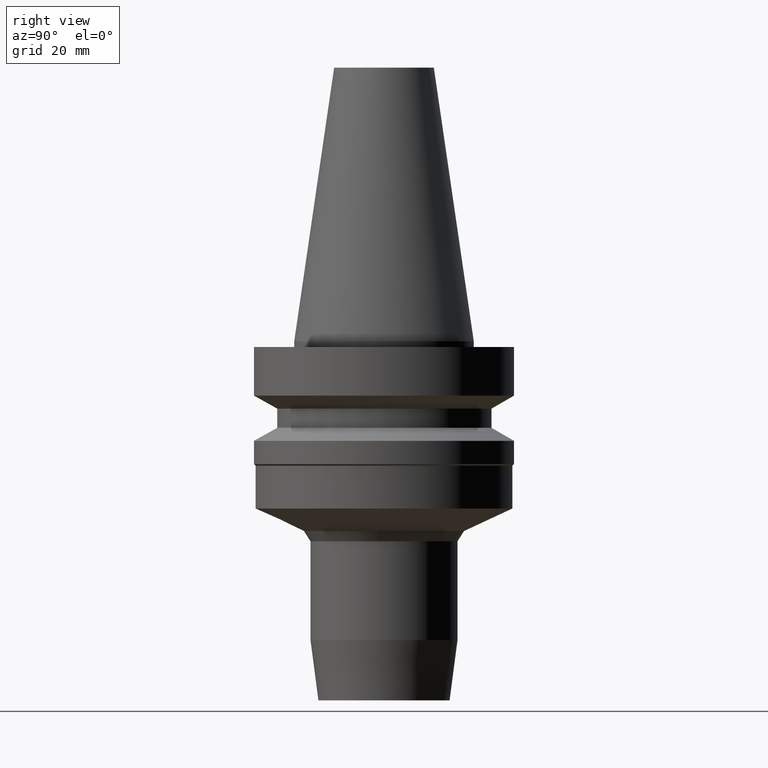
[diagram: clean part render]
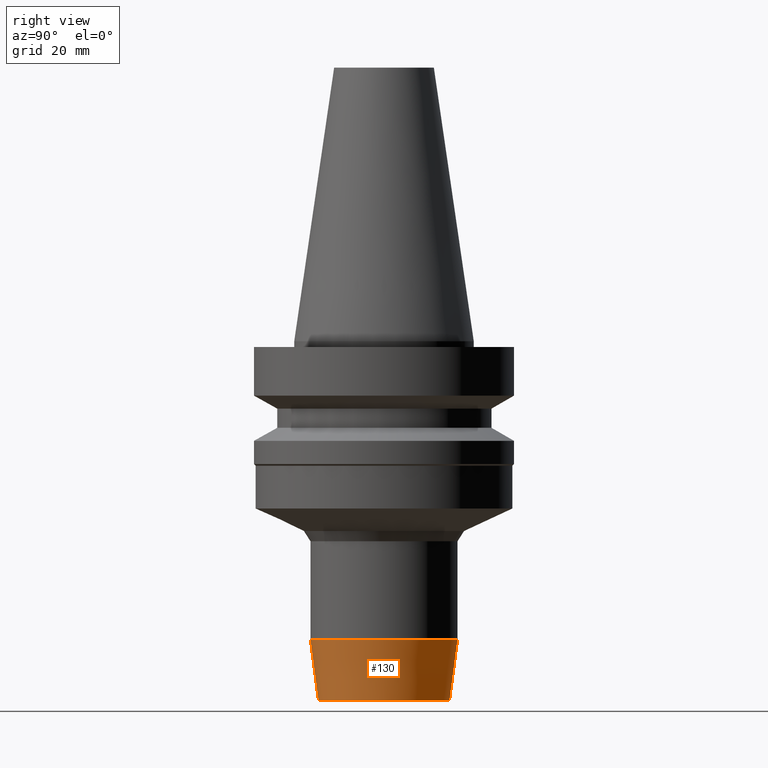
[diagram: same view with one face highlighted and labeled with its STEP entity id]
A machine part, right view. The second image highlights one B-rep face of the part: STEP entity #130.
In plain terms, the highlighted conical surface has half-angle 7.5 deg.
Its self-contained STEP definition (entity closure, byte-faithful):
#61=EDGE_CURVE('Unnamed[1]',#161,#161,#162,.T.);
#130=ADVANCED_FACE('Unnamed[1]',(#267,#268),#269,.T.);
#132=EDGE_CURVE('Unnamed[1]',#271,#271,#272,.T.);
#161=VERTEX_POINT('',#296);
#162=CIRCLE('',#297,11.5958432516891);
#267=FACE_BOUND('',#428,.T.);
#268=FACE_BOUND('',#429,.T.);
#269=CONICAL_SURFACE('',#430,12.2979216258445,0.130899693899576);
#271=VERTEX_POINT('',#433);
#272=CIRCLE('',#434,12.9999999999999);
#296=CARTESIAN_POINT('',(3.88825358729313E-015,11.5958432516891,-63.5000000000046));
#297=AXIS2_PLACEMENT_3D('',#451,#452,#453);
#428=EDGE_LOOP('',(#568));
#429=EDGE_LOOP('',(#569));
#430=AXIS2_PLACEMENT_3D('',#570,#571,#572);
#433=CARTESIAN_POINT('',(3.23517214226456E-015,12.9999999999999,-52.8343706041123));
#434=AXIS2_PLACEMENT_3D('',#573,#574,#575);
#451=CARTESIAN_POINT('',(3.88825358729313E-015,7.77650717458626E-015,-63.5000000000046));
#452=DIRECTION('',(6.12323399573677E-017,1.22464679914734E-016,-1.0));
#453=DIRECTION('',(-1.23259516440783E-032,1.0,1.22464679914734E-016));
#568=ORIENTED_EDGE('',*,*,#61,.F.);
#569=ORIENTED_EDGE('',*,*,#132,.T.);
#570=CARTESIAN_POINT('',(3.56171286477884E-015,7.12342572955769E-015,-58.1671853020585));
#571=DIRECTION('',(-6.12323399573676E-017,-1.22464679914757E-016,1.0));
#572=DIRECTION('',(-1.23259516440765E-032,1.0,1.22464679914757E-016));
#573=CARTESIAN_POINT('',(3.23517214226456E-015,6.47034428452911E-015,-52.8343706041123));
#574=DIRECTION('',(6.12323399573676E-017,1.22464679914715E-016,-1.0));
#575=DIRECTION('',(-1.23259516440784E-032,1.0,1.22464679914715E-016));